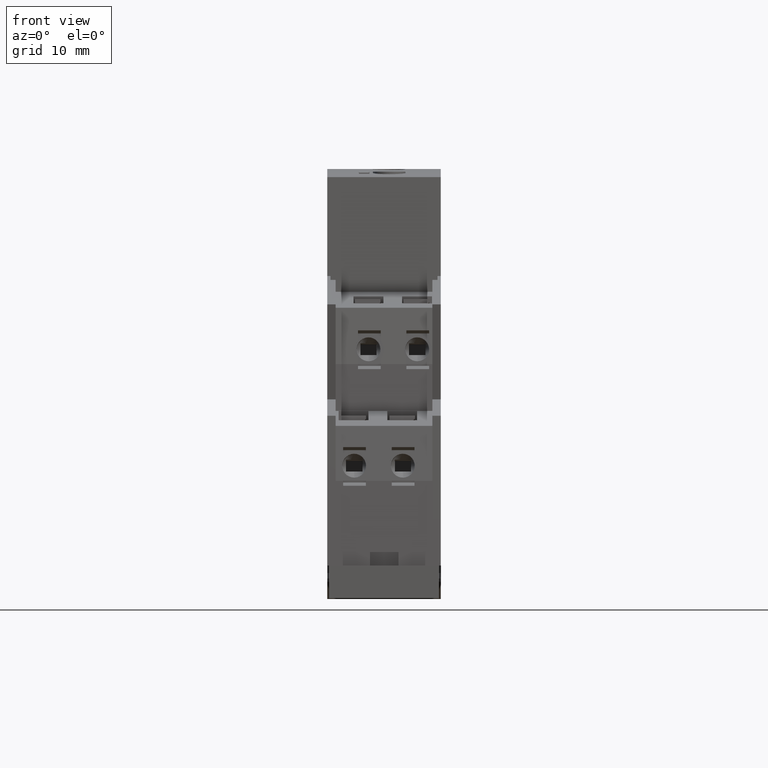
[diagram: clean part render]
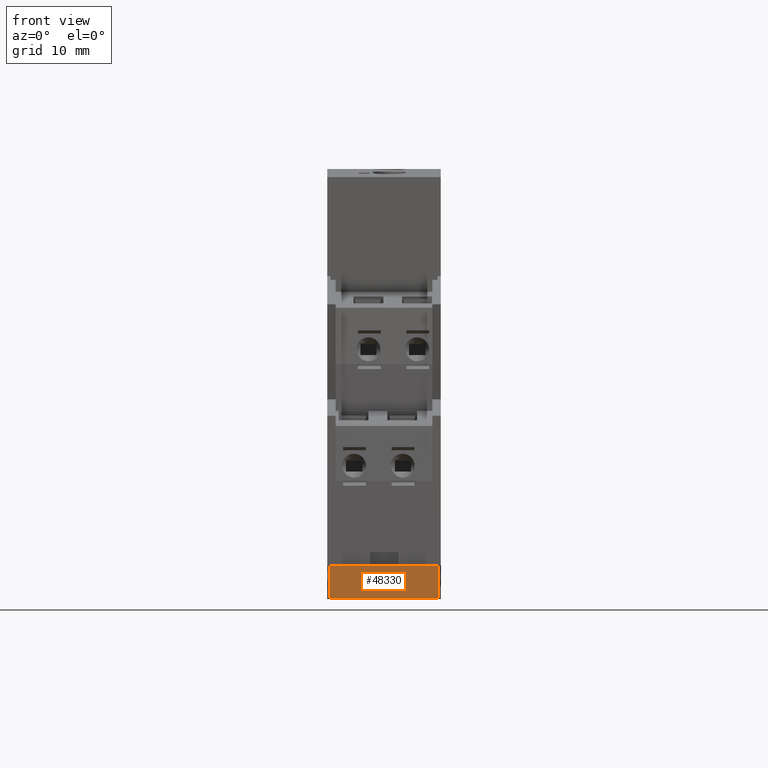
[diagram: same view with one face highlighted and labeled with its STEP entity id]
A machine part, front view. The second image highlights one B-rep face of the part: STEP entity #48330.
In plain terms, the highlighted planar face has unit normal (-0, 1, 0).
Its self-contained STEP definition (entity closure, byte-faithful):
#2770=CARTESIAN_POINT('',(-63.,-5.00000000000003,17.2));
#2780=VERTEX_POINT('',#2770);
#2810=CARTESIAN_POINT('',(-63.,8.00000000000001,17.2));
#2820=DIRECTION('',(4.41495656790506E-16,-1.,0.));
#2830=VECTOR('',#2820,1.);
#2840=LINE('',#2810,#2830);
#2850=CARTESIAN_POINT('',(-63.,-3.19744231092045E-14,17.2));
#2860=VERTEX_POINT('',#2850);
#2870=EDGE_CURVE('',#2860,#2780,#2840,.T.);
#43860=CARTESIAN_POINT('',(-63.,-2.8421709430404E-14,0.));
#43870=DIRECTION('',(1.35525271560688E-20,-2.95822087141495E-31,1.));
#43880=VECTOR('',#43870,1.);
#43890=LINE('',#43860,#43880);
#43900=CARTESIAN_POINT('',(-63.,-3.19744231092045E-14,0.299999999999994)
);
#43910=VERTEX_POINT('',#43900);
#43920=EDGE_CURVE('',#43910,#2860,#43890,.T.);
#45550=CARTESIAN_POINT('',(-63.,-5.00000000000003,0.299999999999994));
#45560=VERTEX_POINT('',#45550);
#45590=CARTESIAN_POINT('',(-63.,-5.00000000000003,0.));
#45600=DIRECTION('',(1.35525271560688E-20,-2.95822087141495E-31,1.));
#45610=VECTOR('',#45600,1.);
#45620=LINE('',#45590,#45610);
#45630=EDGE_CURVE('',#45560,#2780,#45620,.T.);
#48010=CARTESIAN_POINT('',(-63.,8.00000000000001,0.299999999999994));
#48020=DIRECTION('',(-4.41495656790506E-16,1.,9.86076131526265E-32));
#48030=VECTOR('',#48020,1.);
#48040=LINE('',#48010,#48030);
#48050=EDGE_CURVE('',#45560,#43910,#48040,.T.);
#48220=CARTESIAN_POINT('',(-63.,-2.8421709430404E-14,
-3.5527136788005E-15));
#48230=DIRECTION('',(1.,4.41495656790506E-16,-1.35525271560688E-20));
#48240=DIRECTION('',(-4.41495656790506E-16,1.,5.98338187804898E-36));
#48250=AXIS2_PLACEMENT_3D('',#48220,#48230,#48240);
#48260=PLANE('',#48250);
#48270=ORIENTED_EDGE('',*,*,#45630,.T.);
#48280=ORIENTED_EDGE('',*,*,#48050,.F.);
#48290=ORIENTED_EDGE('',*,*,#43920,.F.);
#48300=ORIENTED_EDGE('',*,*,#2870,.F.);
#48310=EDGE_LOOP('',(#48300,#48290,#48280,#48270));
#48320=FACE_OUTER_BOUND('',#48310,.T.);
#48330=ADVANCED_FACE('',(#48320),#48260,.F.);